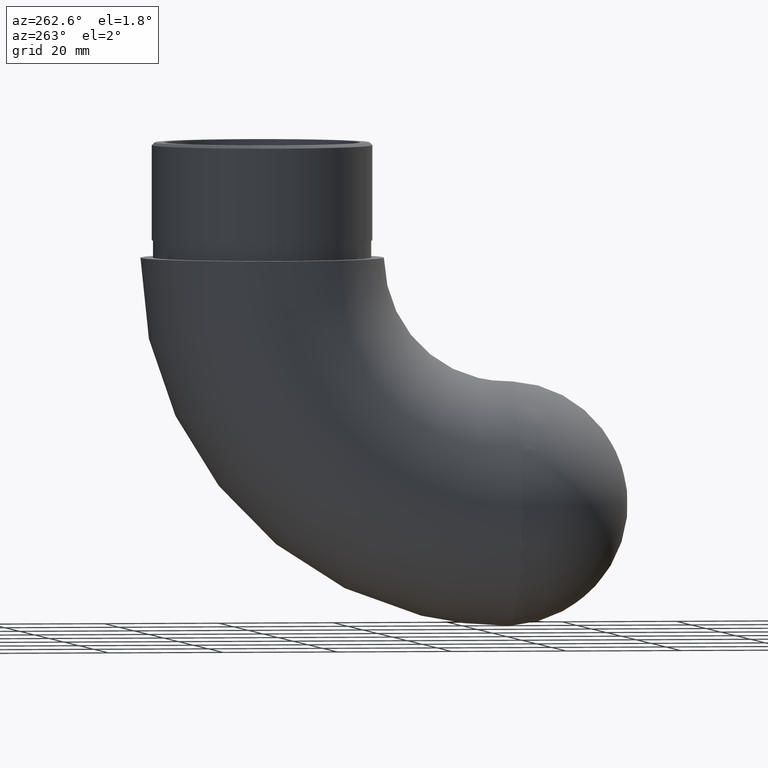
[diagram: clean part render]
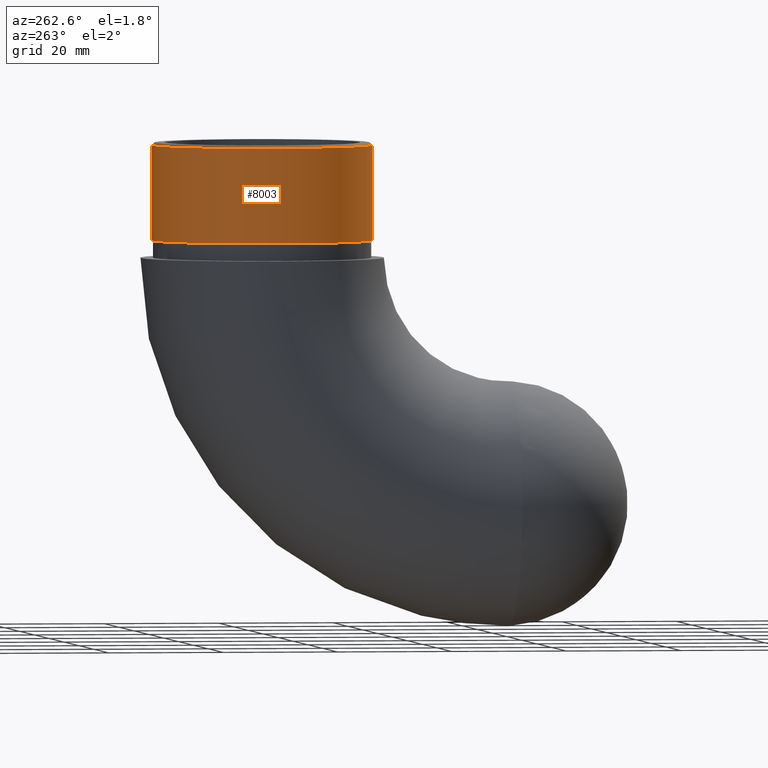
[diagram: same view with one face highlighted and labeled with its STEP entity id]
A machine part, auxiliary view. The second image highlights one B-rep face of the part: STEP entity #8003.
In plain terms, the highlighted cylindrical surface (bore or boss wall) has radius 19.15 mm, axis along (-0, -0, -1).
Its self-contained STEP definition (entity closure, byte-faithful):
#607 = AXIS2_PLACEMENT_3D ( 'NONE', #7075, #7810, #674 ) ;
#674 = DIRECTION ( 'NONE',  ( 1.000000000000000000, 0.0000000000000000000, 0.0000000000000000000 ) ) ;
#738 = CIRCLE ( 'NONE', #607, 19.15000000000000200 ) ;
#1160 = DIRECTION ( 'NONE',  ( -1.000000000000000000, 0.0000000000000000000, 0.0000000000000000000 ) ) ;
#1356 = AXIS2_PLACEMENT_3D ( 'NONE', #11071, #8410, #1160 ) ;
#1368 = EDGE_LOOP ( 'NONE', ( #6502 ) ) ;
#3463 = FACE_OUTER_BOUND ( 'NONE', #6928, .T. ) ;
#3810 = VERTEX_POINT ( 'NONE', #8837 ) ;
#4288 = CIRCLE ( 'NONE', #6719, 19.15000000000000200 ) ;
#5510 = VERTEX_POINT ( 'NONE', #8795 ) ;
#5558 = EDGE_CURVE ( 'NONE', #3810, #3810, #738, .T. ) ;
#5850 = FACE_OUTER_BOUND ( 'NONE', #1368, .T. ) ;
#5941 = CARTESIAN_POINT ( 'NONE',  ( 0.0000000000000000000, 42.80000000000000400, 3.000000000000000000 ) ) ;
#6502 = ORIENTED_EDGE ( 'NONE', *, *, #5558, .T. ) ;
#6719 = AXIS2_PLACEMENT_3D ( 'NONE', #5941, #8623, #6854 ) ;
#6788 = EDGE_CURVE ( 'NONE', #5510, #5510, #4288, .T. ) ;
#6854 = DIRECTION ( 'NONE',  ( 1.000000000000000000, 0.0000000000000000000, 0.0000000000000000000 ) ) ;
#6928 = EDGE_LOOP ( 'NONE', ( #11654 ) ) ;
#7075 = CARTESIAN_POINT ( 'NONE',  ( 0.0000000000000000000, 42.80000000000000400, 19.50000000000000700 ) ) ;
#7707 = CYLINDRICAL_SURFACE ( 'NONE', #1356, 19.15000000000000200 ) ;
#7810 = DIRECTION ( 'NONE',  ( 0.0000000000000000000, 0.0000000000000000000, -1.000000000000000000 ) ) ;
#8003 = ADVANCED_FACE ( 'NONE', ( #5850, #3463 ), #7707, .T. ) ;
#8410 = DIRECTION ( 'NONE',  ( -0.0000000000000000000, -0.0000000000000000000, -1.000000000000000000 ) ) ;
#8623 = DIRECTION ( 'NONE',  ( 0.0000000000000000000, 0.0000000000000000000, 1.000000000000000000 ) ) ;
#8795 = CARTESIAN_POINT ( 'NONE',  ( 19.15000000000000200, 42.80000000000000400, 3.000000000000000000 ) ) ;
#8837 = CARTESIAN_POINT ( 'NONE',  ( 19.15000000000000200, 42.80000000000000400, 19.50000000000000700 ) ) ;
#11071 = CARTESIAN_POINT ( 'NONE',  ( 0.0000000000000000000, 42.80000000000000400, 20.00000000000000000 ) ) ;
#11654 = ORIENTED_EDGE ( 'NONE', *, *, #6788, .T. ) ;